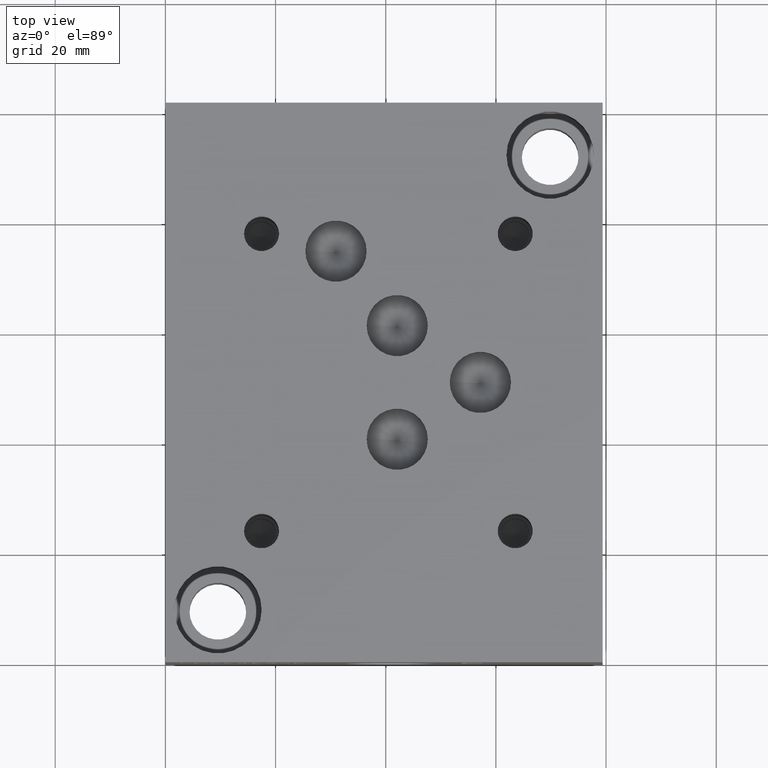
[diagram: clean part render]
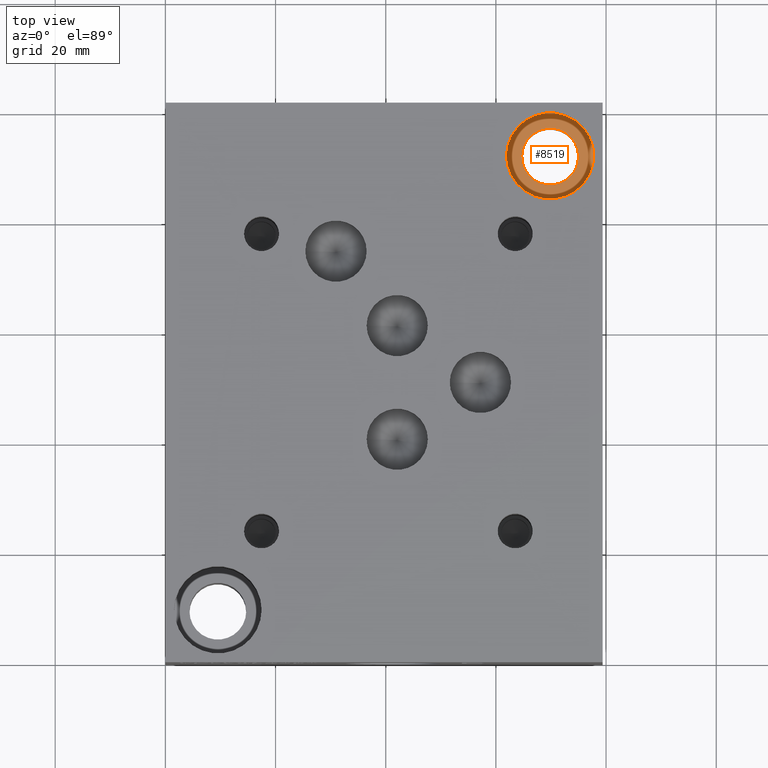
[diagram: same view with one face highlighted and labeled with its STEP entity id]
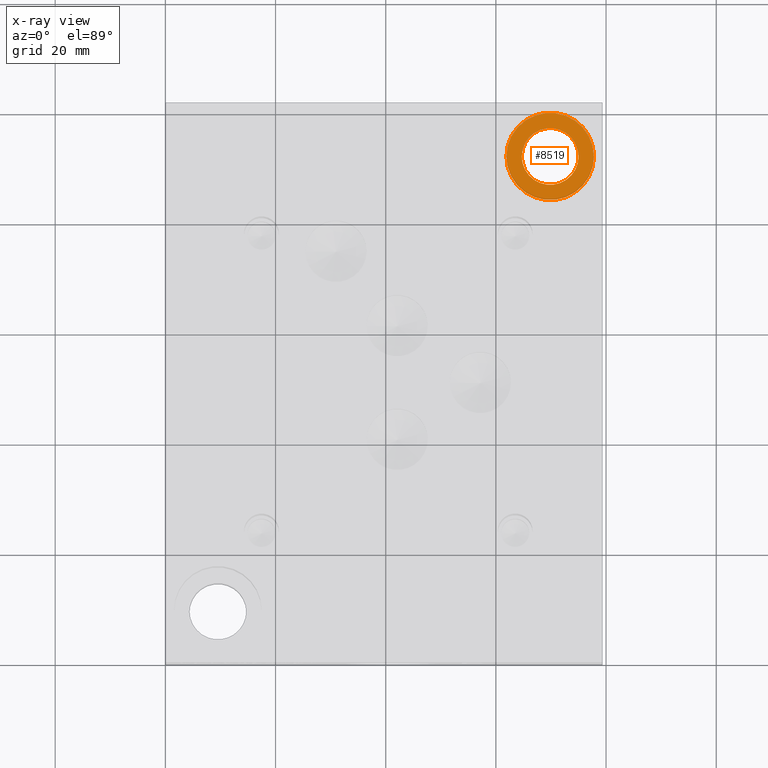
[diagram: x-ray of the same camera — body ghosted, the highlighted face saturated]
A machine part, top view. The second image highlights one B-rep face of the part: STEP entity #8519.
The next image is the same camera in x-ray: the body ghosted, the highlighted face saturated — about 0% of this face is hidden behind the body in this view.
In plain terms, the highlighted planar face has unit normal (0, 0, 1).
Its self-contained STEP definition (entity closure, byte-faithful):
#78=CIRCLE('',#8865,7.9375);
#79=CIRCLE('',#8866,7.9375);
#80=CIRCLE('',#8867,5.1562);
#174=FACE_BOUND('',#1332,.T.);
#449=PLANE('',#8864);
#858=FACE_OUTER_BOUND('',#1331,.T.);
#1331=EDGE_LOOP('',(#7423,#7424));
#1332=EDGE_LOOP('',(#7425));
#4039=VERTEX_POINT('',#14475);
#4040=VERTEX_POINT('',#14476);
#4041=VERTEX_POINT('',#14479);
#5194=EDGE_CURVE('',#4039,#4040,#78,.T.);
#5195=EDGE_CURVE('',#4040,#4039,#79,.T.);
#5196=EDGE_CURVE('',#4041,#4041,#80,.T.);
#7423=ORIENTED_EDGE('',*,*,#5194,.T.);
#7424=ORIENTED_EDGE('',*,*,#5195,.T.);
#7425=ORIENTED_EDGE('',*,*,#5196,.F.);
#8519=ADVANCED_FACE('',(#858,#174),#449,.T.);
#8864=AXIS2_PLACEMENT_3D('',#14474,#10351,#10352);
#8865=AXIS2_PLACEMENT_3D('',#14477,#10353,#10354);
#8866=AXIS2_PLACEMENT_3D('',#14478,#10355,#10356);
#8867=AXIS2_PLACEMENT_3D('',#14480,#10357,#10358);
#10351=DIRECTION('center_axis',(0.,0.,1.));
#10352=DIRECTION('ref_axis',(1.,0.,0.));
#10353=DIRECTION('center_axis',(0.,0.,1.));
#10354=DIRECTION('ref_axis',(1.,0.,0.));
#10355=DIRECTION('center_axis',(0.,0.,1.));
#10356=DIRECTION('ref_axis',(1.,0.,0.));
#10357=DIRECTION('center_axis',(0.,0.,1.));
#10358=DIRECTION('ref_axis',(1.,0.,0.));
#14474=CARTESIAN_POINT('Origin',(69.85,92.075,17.526));
#14475=CARTESIAN_POINT('',(77.7875,92.075,17.526));
#14476=CARTESIAN_POINT('',(61.9125,92.075,17.526));
#14477=CARTESIAN_POINT('Origin',(69.85,92.075,17.526));
#14478=CARTESIAN_POINT('Origin',(69.85,92.075,17.526));
#14479=CARTESIAN_POINT('',(64.6938,92.075,17.526));
#14480=CARTESIAN_POINT('Origin',(69.85,92.075,17.526));